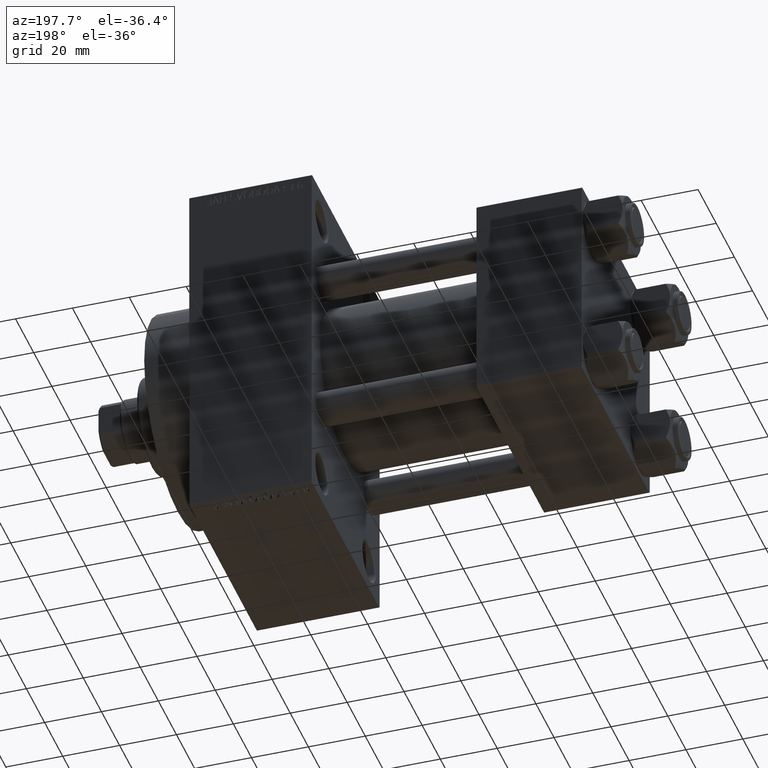
[diagram: clean part render]
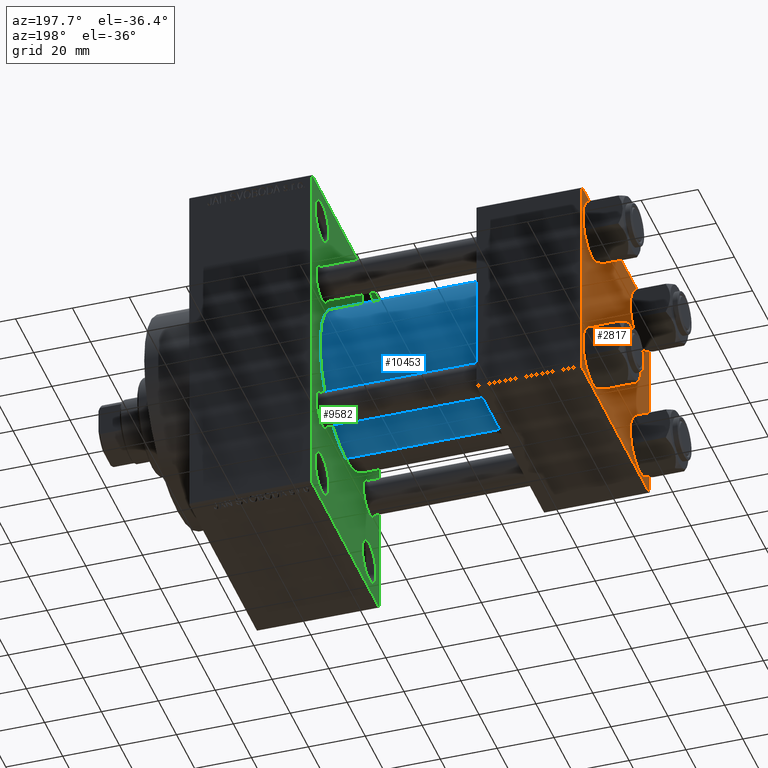
[diagram: same view with three faces highlighted in distinct colors, each labeled with its STEP entity id]
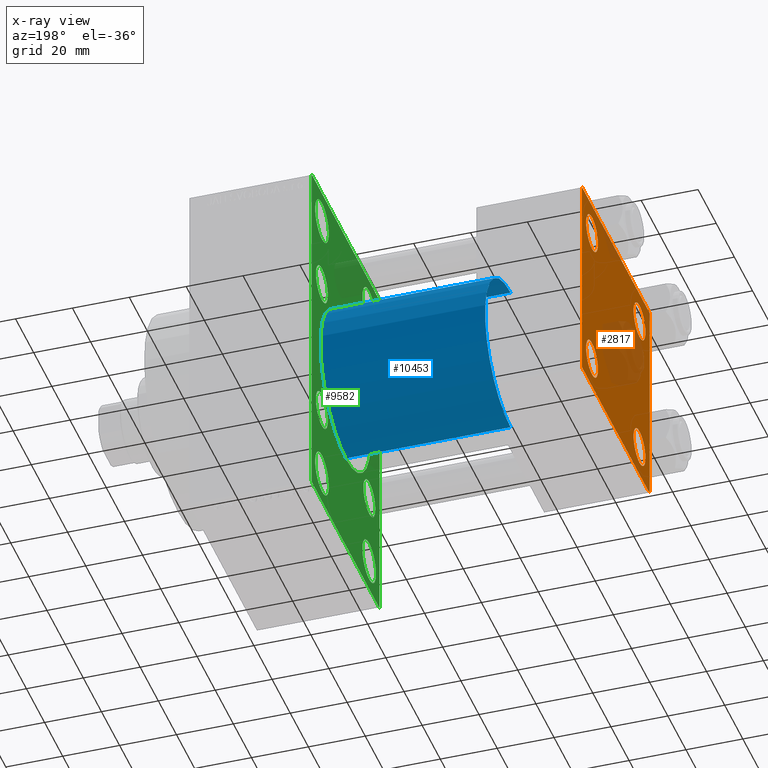
[diagram: x-ray of the same camera — body ghosted, the three highlighted faces saturated]
A machine part, auxiliary view with three faces highlighted in distinct colors.
The next image is the same camera in x-ray (body ghosted, the three faces saturated) — at least one of them is partly hidden behind the body in this view.
Their STEP definitions:

[orange] entity #2817 — the highlighted planar face has unit normal (-1, 0, 0).
#329 = CIRCLE ( 'NONE', #26999, 6.500000000000015987 ) ;
#1247 = CIRCLE ( 'NONE', #40102, 6.500000000000015987 ) ;
#1277 = CARTESIAN_POINT ( 'NONE',  ( 0.000000000000000000, 26.14999999999999858, -19.64999999999998792 ) ) ;
#1685 = LINE ( 'NONE', #34384, #24298 ) ;
#1725 = FACE_BOUND ( 'NONE', #18396, .T. ) ;
#2069 = DIRECTION ( 'NONE',  ( 0.000000000000000000, 0.000000000000000000, 1.000000000000000000 ) ) ;
#2441 = EDGE_CURVE ( 'NONE', #46633, #28955, #32797, .T. ) ;
#2817 = ADVANCED_FACE ( 'NONE', ( #1725, #40891, #37997, #30380, #8184 ), #44943, .T. ) ;
#2893 = LINE ( 'NONE', #36059, #17487 ) ;
#3602 = DIRECTION ( 'NONE',  ( 0.000000000000000000, -1.000000000000000000, -9.251858538542972814E-17 ) ) ;
#3720 = EDGE_CURVE ( 'NONE', #28955, #46633, #36644, .T. ) ;
#3738 = CARTESIAN_POINT ( 'NONE',  ( 0.000000000000000000, -37.00000000000000711, 37.49999999999999289 ) ) ;
#3749 = ORIENTED_EDGE ( 'NONE', *, *, #19549, .T. ) ;
#3956 = ORIENTED_EDGE ( 'NONE', *, *, #34467, .T. ) ;
#4001 = CIRCLE ( 'NONE', #10089, 6.500000000000023093 ) ;
#4297 = EDGE_LOOP ( 'NONE', ( #21981, #3956, #24771, #4758, #33641, #13259, #40525, #37178 ) ) ;
#4334 = DIRECTION ( 'NONE',  ( 0.000000000000000000, 0.000000000000000000, 1.000000000000000000 ) ) ;
#4346 = CARTESIAN_POINT ( 'NONE',  ( 0.000000000000000000, 37.49999999999999289, 37.50000000000000000 ) ) ;
#4504 = CIRCLE ( 'NONE', #47197, 6.500000000000023093 ) ;
#4606 = DIRECTION ( 'NONE',  ( -1.000000000000000000, 0.000000000000000000, -0.000000000000000000 ) ) ;
#4637 = AXIS2_PLACEMENT_3D ( 'NONE', #43961, #32966, #10536 ) ;
#4758 = ORIENTED_EDGE ( 'NONE', *, *, #32325, .T. ) ;
#4762 = ORIENTED_EDGE ( 'NONE', *, *, #35554, .T. ) ;
#4926 = DIRECTION ( 'NONE',  ( 0.000000000000000000, 9.251858538542971581E-17, -1.000000000000000000 ) ) ;
#5622 = VERTEX_POINT ( 'NONE', #3738 ) ;
#5866 = CARTESIAN_POINT ( 'NONE',  ( 0.000000000000000000, 37.24999999999998579, -37.24999999999998579 ) ) ;
#6122 = CARTESIAN_POINT ( 'NONE',  ( 0.000000000000000000, 36.99999999999997868, -37.50000000000000000 ) ) ;
#6212 = AXIS2_PLACEMENT_3D ( 'NONE', #26008, #17904, #29352 ) ;
#6341 = DIRECTION ( 'NONE',  ( 0.000000000000000000, -0.7071067811865524577, 0.7071067811865426878 ) ) ;
#6354 = EDGE_CURVE ( 'NONE', #18154, #39703, #26810, .T. ) ;
#6433 = VECTOR ( 'NONE', #6341, 1000.000000000000000 ) ;
#6642 = DIRECTION ( 'NONE',  ( -0.000000000000000000, 0.7071067811865474617, 0.7071067811865474617 ) ) ;
#7274 = DIRECTION ( 'NONE',  ( 0.000000000000000000, 0.000000000000000000, 1.000000000000000000 ) ) ;
#8184 = FACE_OUTER_BOUND ( 'NONE', #4297, .T. ) ;
#8237 = CARTESIAN_POINT ( 'NONE',  ( 0.000000000000000000, 26.14999999999999858, 19.64999999999998437 ) ) ;
#8916 = VERTEX_POINT ( 'NONE', #15827 ) ;
#9683 = VERTEX_POINT ( 'NONE', #23099 ) ;
#10089 = AXIS2_PLACEMENT_3D ( 'NONE', #15324, #37263, #4334 ) ;
#10266 = CARTESIAN_POINT ( 'NONE',  ( 0.000000000000000000, 37.24999999999999289, 37.24999999999999289 ) ) ;
#10536 = DIRECTION ( 'NONE',  ( 0.000000000000000000, 0.000000000000000000, 1.000000000000000000 ) ) ;
#10631 = DIRECTION ( 'NONE',  ( 1.000000000000000000, -0.000000000000000000, 0.000000000000000000 ) ) ;
#11086 = CIRCLE ( 'NONE', #37760, 6.500000000000015987 ) ;
#11831 = EDGE_CURVE ( 'NONE', #13285, #9683, #4001, .T. ) ;
#11984 = EDGE_LOOP ( 'NONE', ( #3749, #33592 ) ) ;
#13259 = ORIENTED_EDGE ( 'NONE', *, *, #36316, .T. ) ;
#13285 = VERTEX_POINT ( 'NONE', #41605 ) ;
#13745 = AXIS2_PLACEMENT_3D ( 'NONE', #29016, #10631, #7274 ) ;
#14259 = ORIENTED_EDGE ( 'NONE', *, *, #2441, .T. ) ;
#15324 = CARTESIAN_POINT ( 'NONE',  ( 0.000000000000000000, -26.14999999999999147, 26.15000000000000924 ) ) ;
#15827 = CARTESIAN_POINT ( 'NONE',  ( 0.000000000000000000, -26.14999999999999147, -19.64999999999999503 ) ) ;
#16093 = DIRECTION ( 'NONE',  ( 0.000000000000000000, 0.000000000000000000, 1.000000000000000000 ) ) ;
#16157 = LINE ( 'NONE', #27356, #17135 ) ;
#16250 = ORIENTED_EDGE ( 'NONE', *, *, #6354, .T. ) ;
#16776 = CARTESIAN_POINT ( 'NONE',  ( 0.000000000000000000, 26.14999999999999858, 32.65000000000002700 ) ) ;
#17135 = VECTOR ( 'NONE', #4926, 1000.000000000000000 ) ;
#17214 = EDGE_CURVE ( 'NONE', #44502, #25409, #16157, .T. ) ;
#17487 = VECTOR ( 'NONE', #3602, 1000.000000000000000 ) ;
#17687 = CARTESIAN_POINT ( 'NONE',  ( 0.000000000000000000, -37.50000000000000711, 36.99999999999999289 ) ) ;
#17904 = DIRECTION ( 'NONE',  ( 1.000000000000000000, -0.000000000000000000, 0.000000000000000000 ) ) ;
#18080 = VERTEX_POINT ( 'NONE', #6122 ) ;
#18143 = DIRECTION ( 'NONE',  ( 0.000000000000000000, 0.7071067811865474617, -0.7071067811865474617 ) ) ;
#18154 = VERTEX_POINT ( 'NONE', #1277 ) ;
#18396 = EDGE_LOOP ( 'NONE', ( #18813, #35962 ) ) ;
#18813 = ORIENTED_EDGE ( 'NONE', *, *, #11831, .T. ) ;
#19178 = DIRECTION ( 'NONE',  ( -0.000000000000000000, 0.000000000000000000, 1.000000000000000000 ) ) ;
#19424 = DIRECTION ( 'NONE',  ( 1.000000000000000000, -0.000000000000000000, 0.000000000000000000 ) ) ;
#19549 = EDGE_CURVE ( 'NONE', #8916, #31726, #11086, .T. ) ;
#20069 = CARTESIAN_POINT ( 'NONE',  ( 0.000000000000000000, 36.99999999999999289, 37.50000000000000000 ) ) ;
#20222 = CARTESIAN_POINT ( 'NONE',  ( 0.000000000000000000, -26.14999999999999147, 26.15000000000000924 ) ) ;
#21981 = ORIENTED_EDGE ( 'NONE', *, *, #26167, .T. ) ;
#22600 = CARTESIAN_POINT ( 'NONE',  ( 0.000000000000000000, 37.49999999999999289, -36.99999999999998579 ) ) ;
#23099 = CARTESIAN_POINT ( 'NONE',  ( 0.000000000000000000, -26.14999999999999147, 19.64999999999999147 ) ) ;
#23235 = CARTESIAN_POINT ( 'NONE',  ( 0.000000000000000000, -37.00000000000002132, -37.50000000000000711 ) ) ;
#23236 = EDGE_CURVE ( 'NONE', #30301, #25422, #24594, .T. ) ;
#23477 = CARTESIAN_POINT ( 'NONE',  ( 0.000000000000000000, -26.14999999999999147, -26.15000000000000924 ) ) ;
#24019 = DIRECTION ( 'NONE',  ( -0.000000000000000000, -0.7071067811865474617, -0.7071067811865474617 ) ) ;
#24075 = CARTESIAN_POINT ( 'NONE',  ( 0.000000000000000000, 26.14999999999999858, -32.65000000000001990 ) ) ;
#24179 = DIRECTION ( 'NONE',  ( 1.000000000000000000, -0.000000000000000000, 0.000000000000000000 ) ) ;
#24298 = VECTOR ( 'NONE', #38668, 1000.000000000000000 ) ;
#24594 = LINE ( 'NONE', #10266, #46189 ) ;
#24771 = ORIENTED_EDGE ( 'NONE', *, *, #47071, .T. ) ;
#24786 = LINE ( 'NONE', #31947, #26384 ) ;
#24841 = CARTESIAN_POINT ( 'NONE',  ( 0.000000000000000000, -37.50000000000000000, -37.00000000000003553 ) ) ;
#25409 = VERTEX_POINT ( 'NONE', #24841 ) ;
#25422 = VERTEX_POINT ( 'NONE', #32005 ) ;
#25903 = DIRECTION ( 'NONE',  ( 1.000000000000000000, -0.000000000000000000, 0.000000000000000000 ) ) ;
#26008 = CARTESIAN_POINT ( 'NONE',  ( 0.000000000000000000, 26.14999999999999858, -26.15000000000000213 ) ) ;
#26141 = CARTESIAN_POINT ( 'NONE',  ( 0.000000000000000000, 26.14999999999999858, -26.15000000000000213 ) ) ;
#26167 = EDGE_CURVE ( 'NONE', #25422, #42690, #40864, .T. ) ;
#26194 = VECTOR ( 'NONE', #29412, 1000.000000000000000 ) ;
#26384 = VECTOR ( 'NONE', #6642, 1000.000000000000114 ) ;
#26810 = CIRCLE ( 'NONE', #6212, 6.500000000000015987 ) ;
#26999 = AXIS2_PLACEMENT_3D ( 'NONE', #23477, #24179, #16093 ) ;
#27356 = CARTESIAN_POINT ( 'NONE',  ( 0.000000000000000000, -37.50000000000000711, 37.49999999999999289 ) ) ;
#28708 = EDGE_CURVE ( 'NONE', #31726, #8916, #329, .T. ) ;
#28930 = EDGE_LOOP ( 'NONE', ( #41498, #14259 ) ) ;
#28955 = VERTEX_POINT ( 'NONE', #16776 ) ;
#29016 = CARTESIAN_POINT ( 'NONE',  ( 0.000000000000000000, 26.14999999999999858, 26.15000000000000213 ) ) ;
#29352 = DIRECTION ( 'NONE',  ( 0.000000000000000000, 0.000000000000000000, 1.000000000000000000 ) ) ;
#29412 = DIRECTION ( 'NONE',  ( 0.000000000000000000, 0.000000000000000000, -1.000000000000000000 ) ) ;
#30301 = VERTEX_POINT ( 'NONE', #20069 ) ;
#30380 = FACE_BOUND ( 'NONE', #28930, .T. ) ;
#31407 = LINE ( 'NONE', #5866, #35459 ) ;
#31726 = VERTEX_POINT ( 'NONE', #43235 ) ;
#31883 = DIRECTION ( 'NONE',  ( 1.000000000000000000, -0.000000000000000000, 0.000000000000000000 ) ) ;
#31947 = CARTESIAN_POINT ( 'NONE',  ( -0.000000000000000000, -37.25000000000000000, 37.25000000000000000 ) ) ;
#32005 = CARTESIAN_POINT ( 'NONE',  ( 0.000000000000000000, 37.49999999999999289, 37.00000000000000000 ) ) ;
#32325 = EDGE_CURVE ( 'NONE', #37831, #25409, #32353, .T. ) ;
#32353 = LINE ( 'NONE', #43117, #6433 ) ;
#32797 = CIRCLE ( 'NONE', #13745, 6.500000000000023093 ) ;
#32966 = DIRECTION ( 'NONE',  ( 1.000000000000000000, -0.000000000000000000, 0.000000000000000000 ) ) ;
#33173 = EDGE_LOOP ( 'NONE', ( #16250, #4762 ) ) ;
#33303 = DIRECTION ( 'NONE',  ( 0.000000000000000000, 0.000000000000000000, 1.000000000000000000 ) ) ;
#33592 = ORIENTED_EDGE ( 'NONE', *, *, #28708, .T. ) ;
#33641 = ORIENTED_EDGE ( 'NONE', *, *, #17214, .F. ) ;
#34384 = CARTESIAN_POINT ( 'NONE',  ( 0.000000000000000000, 37.49999999999999289, 37.50000000000000000 ) ) ;
#34467 = EDGE_CURVE ( 'NONE', #42690, #18080, #31407, .T. ) ;
#35459 = VECTOR ( 'NONE', #24019, 1000.000000000000114 ) ;
#35554 = EDGE_CURVE ( 'NONE', #39703, #18154, #1247, .T. ) ;
#35962 = ORIENTED_EDGE ( 'NONE', *, *, #46429, .T. ) ;
#36059 = CARTESIAN_POINT ( 'NONE',  ( 0.000000000000000000, 37.49999999999999289, -37.50000000000000000 ) ) ;
#36316 = EDGE_CURVE ( 'NONE', #44502, #5622, #24786, .T. ) ;
#36644 = CIRCLE ( 'NONE', #4637, 6.500000000000023093 ) ;
#37178 = ORIENTED_EDGE ( 'NONE', *, *, #23236, .T. ) ;
#37263 = DIRECTION ( 'NONE',  ( 1.000000000000000000, -0.000000000000000000, 0.000000000000000000 ) ) ;
#37300 = CARTESIAN_POINT ( 'NONE',  ( 0.000000000000000000, 0.000000000000000000, 0.000000000000000000 ) ) ;
#37760 = AXIS2_PLACEMENT_3D ( 'NONE', #45441, #19424, #38019 ) ;
#37831 = VERTEX_POINT ( 'NONE', #23235 ) ;
#37997 = FACE_BOUND ( 'NONE', #33173, .T. ) ;
#38019 = DIRECTION ( 'NONE',  ( 0.000000000000000000, 0.000000000000000000, 1.000000000000000000 ) ) ;
#38668 = DIRECTION ( 'NONE',  ( 0.000000000000000000, -1.000000000000000000, -9.251858538542971581E-17 ) ) ;
#38910 = AXIS2_PLACEMENT_3D ( 'NONE', #37300, #4606, #19178 ) ;
#39703 = VERTEX_POINT ( 'NONE', #24075 ) ;
#40102 = AXIS2_PLACEMENT_3D ( 'NONE', #26141, #25903, #33303 ) ;
#40525 = ORIENTED_EDGE ( 'NONE', *, *, #42194, .F. ) ;
#40864 = LINE ( 'NONE', #4346, #26194 ) ;
#40891 = FACE_BOUND ( 'NONE', #11984, .T. ) ;
#41498 = ORIENTED_EDGE ( 'NONE', *, *, #3720, .T. ) ;
#41605 = CARTESIAN_POINT ( 'NONE',  ( 0.000000000000000000, -26.14999999999999147, 32.65000000000003411 ) ) ;
#42194 = EDGE_CURVE ( 'NONE', #30301, #5622, #1685, .T. ) ;
#42690 = VERTEX_POINT ( 'NONE', #22600 ) ;
#43117 = CARTESIAN_POINT ( 'NONE',  ( 0.000000000000000000, -37.24999999999975842, -37.25000000000027001 ) ) ;
#43235 = CARTESIAN_POINT ( 'NONE',  ( 0.000000000000000000, -26.14999999999999147, -32.65000000000002700 ) ) ;
#43961 = CARTESIAN_POINT ( 'NONE',  ( 0.000000000000000000, 26.14999999999999858, 26.15000000000000213 ) ) ;
#44502 = VERTEX_POINT ( 'NONE', #17687 ) ;
#44943 = PLANE ( 'NONE',  #38910 ) ;
#45441 = CARTESIAN_POINT ( 'NONE',  ( 0.000000000000000000, -26.14999999999999147, -26.15000000000000924 ) ) ;
#46189 = VECTOR ( 'NONE', #18143, 1000.000000000000114 ) ;
#46429 = EDGE_CURVE ( 'NONE', #9683, #13285, #4504, .T. ) ;
#46633 = VERTEX_POINT ( 'NONE', #8237 ) ;
#47071 = EDGE_CURVE ( 'NONE', #18080, #37831, #2893, .T. ) ;
#47197 = AXIS2_PLACEMENT_3D ( 'NONE', #20222, #31883, #2069 ) ;

[blue] entity #10453 — the highlighted cylindrical surface (partial cylindrical patch) has radius 28 mm, axis along (-1, -0, -0).
#468 = VECTOR ( 'NONE', #1026, 1000.000000000000000 ) ;
#540 = CARTESIAN_POINT ( 'NONE',  ( 37.00000000000000000, -2.602085213965210642E-15, 0.000000000000000000 ) ) ;
#1026 = DIRECTION ( 'NONE',  ( -1.000000000000000000, -0.000000000000000000, -0.000000000000000000 ) ) ;
#1312 = CIRCLE ( 'NONE', #18065, 28.00000000000000000 ) ;
#1333 = DIRECTION ( 'NONE',  ( -1.000000000000000000, -0.000000000000000000, -0.000000000000000000 ) ) ;
#1606 = FACE_OUTER_BOUND ( 'NONE', #35569, .T. ) ;
#2108 = ORIENTED_EDGE ( 'NONE', *, *, #11327, .T. ) ;
#6268 = VECTOR ( 'NONE', #1333, 1000.000000000000000 ) ;
#6950 = DIRECTION ( 'NONE',  ( 0.000000000000000000, 0.000000000000000000, 1.000000000000000000 ) ) ;
#8059 = DIRECTION ( 'NONE',  ( -1.000000000000000000, -0.000000000000000000, -0.000000000000000000 ) ) ;
#8990 = CIRCLE ( 'NONE', #18133, 28.00000000000000000 ) ;
#10453 = ADVANCED_FACE ( 'NONE', ( #1606 ), #29555, .T. ) ;
#11327 = EDGE_CURVE ( 'NONE', #44877, #43049, #19470, .T. ) ;
#11405 = CARTESIAN_POINT ( 'NONE',  ( 95.00000000000000000, -2.602085213965210642E-15, 0.000000000000000000 ) ) ;
#13232 = CARTESIAN_POINT ( 'NONE',  ( 95.00000000000000000, -2.602085213965210642E-15, 28.00000000000000000 ) ) ;
#14876 = CARTESIAN_POINT ( 'NONE',  ( 95.00000000000000000, -2.602085213965210642E-15, 28.00000000000000000 ) ) ;
#15657 = ORIENTED_EDGE ( 'NONE', *, *, #35778, .F. ) ;
#17689 = CARTESIAN_POINT ( 'NONE',  ( 37.00000000000000000, 8.269258236473776482E-16, -28.00000000000000000 ) ) ;
#18065 = AXIS2_PLACEMENT_3D ( 'NONE', #540, #36072, #6950 ) ;
#18133 = AXIS2_PLACEMENT_3D ( 'NONE', #22845, #36913, #45040 ) ;
#18457 = AXIS2_PLACEMENT_3D ( 'NONE', #11405, #8059, #22637 ) ;
#19470 = LINE ( 'NONE', #34026, #6268 ) ;
#20714 = VERTEX_POINT ( 'NONE', #13232 ) ;
#22637 = DIRECTION ( 'NONE',  ( 0.000000000000000000, 0.000000000000000000, 1.000000000000000000 ) ) ;
#22845 = CARTESIAN_POINT ( 'NONE',  ( 95.00000000000000000, -2.602085213965210642E-15, 0.000000000000000000 ) ) ;
#23814 = ORIENTED_EDGE ( 'NONE', *, *, #38122, .T. ) ;
#29555 = CYLINDRICAL_SURFACE ( 'NONE', #18457, 28.00000000000000000 ) ;
#32504 = VERTEX_POINT ( 'NONE', #46347 ) ;
#33947 = LINE ( 'NONE', #14876, #468 ) ;
#34026 = CARTESIAN_POINT ( 'NONE',  ( 95.00000000000000000, 8.269258236473776482E-16, -28.00000000000000000 ) ) ;
#35569 = EDGE_LOOP ( 'NONE', ( #41183, #2108, #23814, #15657 ) ) ;
#35778 = EDGE_CURVE ( 'NONE', #20714, #32504, #33947, .T. ) ;
#36072 = DIRECTION ( 'NONE',  ( 1.000000000000000000, -0.000000000000000000, 0.000000000000000000 ) ) ;
#36913 = DIRECTION ( 'NONE',  ( 1.000000000000000000, 0.000000000000000000, 0.000000000000000000 ) ) ;
#38122 = EDGE_CURVE ( 'NONE', #43049, #32504, #1312, .T. ) ;
#39846 = EDGE_CURVE ( 'NONE', #44877, #20714, #8990, .T. ) ;
#41183 = ORIENTED_EDGE ( 'NONE', *, *, #39846, .F. ) ;
#43049 = VERTEX_POINT ( 'NONE', #17689 ) ;
#44877 = VERTEX_POINT ( 'NONE', #45285 ) ;
#45040 = DIRECTION ( 'NONE',  ( 0.000000000000000000, 0.000000000000000000, -1.000000000000000000 ) ) ;
#45285 = CARTESIAN_POINT ( 'NONE',  ( 95.00000000000000000, 8.269258236473776482E-16, -28.00000000000000000 ) ) ;
#46347 = CARTESIAN_POINT ( 'NONE',  ( 37.00000000000000000, -2.602085213965210642E-15, 28.00000000000000000 ) ) ;

[green] entity #9582 — the highlighted planar face has unit normal (-1, 0, 0).
#4 = DIRECTION ( 'NONE',  ( 1.000000000000000000, -0.000000000000000000, 0.000000000000000000 ) ) ;
#10 = VECTOR ( 'NONE', #23156, 1000.000000000000000 ) ;
#125 = CARTESIAN_POINT ( 'NONE',  ( 95.00000000000000000, -26.14999999999999147, -32.65000000000001990 ) ) ;
#332 = ORIENTED_EDGE ( 'NONE', *, *, #12573, .T. ) ;
#338 = VERTEX_POINT ( 'NONE', #39956 ) ;
#341 = DIRECTION ( 'NONE',  ( 0.000000000000000000, 0.000000000000000000, 1.000000000000000000 ) ) ;
#607 = AXIS2_PLACEMENT_3D ( 'NONE', #3570, #4, #15511 ) ;
#610 = CARTESIAN_POINT ( 'NONE',  ( 95.00000000000000000, 26.14999999999999858, 26.15000000000000213 ) ) ;
#914 = CARTESIAN_POINT ( 'NONE',  ( 95.00000000000000000, -50.49999999999970868, 50.50000000000040501 ) ) ;
#1058 = CIRCLE ( 'NONE', #10196, 6.500000000000008882 ) ;
#1196 = LINE ( 'NONE', #37464, #43942 ) ;
#1416 = AXIS2_PLACEMENT_3D ( 'NONE', #12717, #9354, #41595 ) ;
#1772 = CARTESIAN_POINT ( 'NONE',  ( 95.00000000000000000, -26.14999999999999147, 19.65000000000000213 ) ) ;
#2294 = ORIENTED_EDGE ( 'NONE', *, *, #34928, .T. ) ;
#2527 = CIRCLE ( 'NONE', #19319, 7.499999999999978684 ) ;
#2724 = AXIS2_PLACEMENT_3D ( 'NONE', #18637, #26500, #3591 ) ;
#2950 = DIRECTION ( 'NONE',  ( -0.000000000000000000, -0.7071067811865573427, -0.7071067811865378028 ) ) ;
#3368 = CARTESIAN_POINT ( 'NONE',  ( 95.00000000000000000, -26.14999999999999147, 26.15000000000000924 ) ) ;
#3570 = CARTESIAN_POINT ( 'NONE',  ( 95.00000000000000000, -25.99999999999999645, -52.49999999999999289 ) ) ;
#3591 = DIRECTION ( 'NONE',  ( 0.000000000000000000, 0.000000000000000000, 1.000000000000000000 ) ) ;
#3634 = CARTESIAN_POINT ( 'NONE',  ( 95.00000000000000000, 26.00000000000000000, 52.49999999999999289 ) ) ;
#3868 = CIRCLE ( 'NONE', #9969, 6.500000000000008882 ) ;
#4216 = CARTESIAN_POINT ( 'NONE',  ( 95.00000000000000000, 26.00000000000000000, 52.49999999999999289 ) ) ;
#4528 = CARTESIAN_POINT ( 'NONE',  ( 95.00000000000000000, 26.14999999999999858, -32.65000000000001279 ) ) ;
#5022 = CIRCLE ( 'NONE', #33196, 7.499999999999978684 ) ;
#5536 = CIRCLE ( 'NONE', #7853, 28.00000000000000000 ) ;
#5710 = VERTEX_POINT ( 'NONE', #19723 ) ;
#5799 = ORIENTED_EDGE ( 'NONE', *, *, #11131, .T. ) ;
#6045 = DIRECTION ( 'NONE',  ( 0.000000000000000000, 0.000000000000000000, 1.000000000000000000 ) ) ;
#6191 = EDGE_CURVE ( 'NONE', #45585, #17447, #9926, .T. ) ;
#6201 = VERTEX_POINT ( 'NONE', #8386 ) ;
#6767 = EDGE_CURVE ( 'NONE', #45092, #25185, #3868, .T. ) ;
#7248 = CIRCLE ( 'NONE', #42383, 7.499999999999978684 ) ;
#7249 = CIRCLE ( 'NONE', #22549, 7.499999999999978684 ) ;
#7498 = DIRECTION ( 'NONE',  ( 1.000000000000000000, -0.000000000000000000, 0.000000000000000000 ) ) ;
#7804 = DIRECTION ( 'NONE',  ( 1.000000000000000000, -0.000000000000000000, 0.000000000000000000 ) ) ;
#7827 = FACE_BOUND ( 'NONE', #39693, .T. ) ;
#7853 = AXIS2_PLACEMENT_3D ( 'NONE', #20936, #21174, #42446 ) ;
#8198 = DIRECTION ( 'NONE',  ( 1.000000000000000000, -0.000000000000000000, 0.000000000000000000 ) ) ;
#8386 = CARTESIAN_POINT ( 'NONE',  ( 95.00000000000000000, 36.99999999999997158, 63.99999999999998579 ) ) ;
#8990 = CIRCLE ( 'NONE', #18133, 28.00000000000000000 ) ;
#9210 = ORIENTED_EDGE ( 'NONE', *, *, #39449, .T. ) ;
#9354 = DIRECTION ( 'NONE',  ( 1.000000000000000000, -0.000000000000000000, 0.000000000000000000 ) ) ;
#9475 = DIRECTION ( 'NONE',  ( 0.000000000000000000, 0.000000000000000000, 1.000000000000000000 ) ) ;
#9582 = ADVANCED_FACE ( 'NONE', ( #40533, #15243, #11176, #18107, #47231, #17868, #7827, #32651, #14526, #46995 ), #29085, .T. ) ;
#9926 = CIRCLE ( 'NONE', #36611, 6.500000000000008882 ) ;
#9946 = DIRECTION ( 'NONE',  ( 1.000000000000000000, -0.000000000000000000, 0.000000000000000000 ) ) ;
#9969 = AXIS2_PLACEMENT_3D ( 'NONE', #610, #7498, #26366 ) ;
#10098 = ORIENTED_EDGE ( 'NONE', *, *, #6191, .T. ) ;
#10107 = CARTESIAN_POINT ( 'NONE',  ( 95.00000000000000000, 26.00000000000000000, 45.00000000000001421 ) ) ;
#10196 = AXIS2_PLACEMENT_3D ( 'NONE', #3368, #17948, #14362 ) ;
#10658 = CARTESIAN_POINT ( 'NONE',  ( 95.00000000000000000, 26.00000000000000000, -52.49999999999999289 ) ) ;
#10662 = CARTESIAN_POINT ( 'NONE',  ( 95.00000000000000000, 37.49999999999999289, -63.50000000000001421 ) ) ;
#10756 = LINE ( 'NONE', #27964, #12666 ) ;
#11131 = EDGE_CURVE ( 'NONE', #12447, #18562, #38282, .T. ) ;
#11176 = FACE_BOUND ( 'NONE', #34843, .T. ) ;
#11373 = VERTEX_POINT ( 'NONE', #31379 ) ;
#11525 = EDGE_CURVE ( 'NONE', #30711, #41809, #43532, .T. ) ;
#11589 = VERTEX_POINT ( 'NONE', #42832 ) ;
#11860 = DIRECTION ( 'NONE',  ( 1.000000000000000000, -0.000000000000000000, 0.000000000000000000 ) ) ;
#11941 = DIRECTION ( 'NONE',  ( 0.000000000000000000, -1.000000000000000000, -1.850371707708594563E-16 ) ) ;
#12025 = EDGE_LOOP ( 'NONE', ( #15217, #332, #29899, #32858, #22088, #21369, #45489, #35689 ) ) ;
#12055 = ORIENTED_EDGE ( 'NONE', *, *, #32119, .T. ) ;
#12121 = DIRECTION ( 'NONE',  ( 1.000000000000000000, -0.000000000000000000, 0.000000000000000000 ) ) ;
#12387 = EDGE_CURVE ( 'NONE', #20714, #44877, #5536, .T. ) ;
#12446 = DIRECTION ( 'NONE',  ( 0.000000000000000000, 0.000000000000000000, 1.000000000000000000 ) ) ;
#12447 = VERTEX_POINT ( 'NONE', #1772 ) ;
#12573 = EDGE_CURVE ( 'NONE', #18467, #338, #38183, .T. ) ;
#12599 = VECTOR ( 'NONE', #39648, 1000.000000000000000 ) ;
#12666 = VECTOR ( 'NONE', #43236, 1000.000000000000000 ) ;
#12717 = CARTESIAN_POINT ( 'NONE',  ( 95.00000000000000000, 26.14999999999999858, 26.15000000000000213 ) ) ;
#13232 = CARTESIAN_POINT ( 'NONE',  ( 95.00000000000000000, -2.602085213965210642E-15, 28.00000000000000000 ) ) ;
#13473 = ORIENTED_EDGE ( 'NONE', *, *, #35585, .T. ) ;
#13940 = EDGE_CURVE ( 'NONE', #38358, #19647, #2527, .T. ) ;
#14094 = ORIENTED_EDGE ( 'NONE', *, *, #30799, .T. ) ;
#14119 = AXIS2_PLACEMENT_3D ( 'NONE', #16904, #35260, #32145 ) ;
#14149 = EDGE_CURVE ( 'NONE', #18562, #12447, #1058, .T. ) ;
#14362 = DIRECTION ( 'NONE',  ( 0.000000000000000000, 0.000000000000000000, 1.000000000000000000 ) ) ;
#14495 = CARTESIAN_POINT ( 'NONE',  ( 95.00000000000000000, -37.49999999999999289, 63.49999999999994316 ) ) ;
#14526 = FACE_BOUND ( 'NONE', #42316, .T. ) ;
#14546 = CARTESIAN_POINT ( 'NONE',  ( 95.00000000000000000, -25.99999999999999645, -45.00000000000001421 ) ) ;
#15047 = AXIS2_PLACEMENT_3D ( 'NONE', #21713, #40566, #18136 ) ;
#15088 = CIRCLE ( 'NONE', #15047, 7.499999999999978684 ) ;
#15201 = DIRECTION ( 'NONE',  ( 1.000000000000000000, -0.000000000000000000, 0.000000000000000000 ) ) ;
#15217 = ORIENTED_EDGE ( 'NONE', *, *, #45552, .T. ) ;
#15243 = FACE_BOUND ( 'NONE', #18949, .T. ) ;
#15511 = DIRECTION ( 'NONE',  ( 0.000000000000000000, 0.000000000000000000, 1.000000000000000000 ) ) ;
#16361 = ORIENTED_EDGE ( 'NONE', *, *, #6767, .T. ) ;
#16432 = CARTESIAN_POINT ( 'NONE',  ( 95.00000000000000000, 26.00000000000000000, 59.99999999999997158 ) ) ;
#16904 = CARTESIAN_POINT ( 'NONE',  ( 95.00000000000000000, 26.00000000000000000, -52.49999999999999289 ) ) ;
#16976 = EDGE_LOOP ( 'NONE', ( #24007, #5799 ) ) ;
#17149 = VERTEX_POINT ( 'NONE', #14495 ) ;
#17447 = VERTEX_POINT ( 'NONE', #125 ) ;
#17868 = FACE_BOUND ( 'NONE', #43223, .T. ) ;
#17948 = DIRECTION ( 'NONE',  ( 1.000000000000000000, -0.000000000000000000, 0.000000000000000000 ) ) ;
#17999 = CIRCLE ( 'NONE', #30207, 6.500000000000008882 ) ;
#18107 = FACE_BOUND ( 'NONE', #37509, .T. ) ;
#18133 = AXIS2_PLACEMENT_3D ( 'NONE', #22845, #36913, #45040 ) ;
#18136 = DIRECTION ( 'NONE',  ( 0.000000000000000000, 0.000000000000000000, 1.000000000000000000 ) ) ;
#18314 = EDGE_CURVE ( 'NONE', #11589, #30711, #28915, .T. ) ;
#18451 = ORIENTED_EDGE ( 'NONE', *, *, #22364, .T. ) ;
#18467 = VERTEX_POINT ( 'NONE', #44193 ) ;
#18562 = VERTEX_POINT ( 'NONE', #20533 ) ;
#18637 = CARTESIAN_POINT ( 'NONE',  ( 95.00000000000000000, -25.99999999999999645, -52.49999999999999289 ) ) ;
#18949 = EDGE_LOOP ( 'NONE', ( #19697, #32136 ) ) ;
#19162 = CARTESIAN_POINT ( 'NONE',  ( 95.00000000000000000, -25.99999999999999645, -59.99999999999997158 ) ) ;
#19256 = AXIS2_PLACEMENT_3D ( 'NONE', #46240, #9946, #9475 ) ;
#19319 = AXIS2_PLACEMENT_3D ( 'NONE', #23002, #8198, #341 ) ;
#19607 = VERTEX_POINT ( 'NONE', #14546 ) ;
#19647 = VERTEX_POINT ( 'NONE', #25513 ) ;
#19697 = ORIENTED_EDGE ( 'NONE', *, *, #36079, .T. ) ;
#19723 = CARTESIAN_POINT ( 'NONE',  ( 95.00000000000000000, 26.00000000000000000, -45.00000000000001421 ) ) ;
#20016 = CARTESIAN_POINT ( 'NONE',  ( 95.00000000000000000, -36.99999999999995737, 63.99999999999997158 ) ) ;
#20533 = CARTESIAN_POINT ( 'NONE',  ( 95.00000000000000000, -26.14999999999999147, 32.65000000000001990 ) ) ;
#20714 = VERTEX_POINT ( 'NONE', #13232 ) ;
#20936 = CARTESIAN_POINT ( 'NONE',  ( 95.00000000000000000, -2.602085213965210642E-15, 0.000000000000000000 ) ) ;
#21174 = DIRECTION ( 'NONE',  ( 1.000000000000000000, 0.000000000000000000, 0.000000000000000000 ) ) ;
#21297 = ORIENTED_EDGE ( 'NONE', *, *, #39846, .T. ) ;
#21369 = ORIENTED_EDGE ( 'NONE', *, *, #22340, .T. ) ;
#21713 = CARTESIAN_POINT ( 'NONE',  ( 95.00000000000000000, -25.99999999999999645, 52.50000000000000000 ) ) ;
#22008 = VERTEX_POINT ( 'NONE', #22240 ) ;
#22088 = ORIENTED_EDGE ( 'NONE', *, *, #24242, .F. ) ;
#22240 = CARTESIAN_POINT ( 'NONE',  ( 95.00000000000000000, 26.00000000000000000, -59.99999999999997158 ) ) ;
#22340 = EDGE_CURVE ( 'NONE', #6201, #11589, #27876, .T. ) ;
#22364 = EDGE_CURVE ( 'NONE', #5710, #22008, #25569, .T. ) ;
#22399 = CARTESIAN_POINT ( 'NONE',  ( 95.00000000000000000, 0.000000000000000000, 0.000000000000000000 ) ) ;
#22452 = EDGE_CURVE ( 'NONE', #22008, #5710, #7249, .T. ) ;
#22549 = AXIS2_PLACEMENT_3D ( 'NONE', #10658, #15201, #29274 ) ;
#22845 = CARTESIAN_POINT ( 'NONE',  ( 95.00000000000000000, -2.602085213965210642E-15, 0.000000000000000000 ) ) ;
#22876 = VECTOR ( 'NONE', #41463, 1000.000000000000000 ) ;
#23002 = CARTESIAN_POINT ( 'NONE',  ( 95.00000000000000000, -25.99999999999999645, 52.50000000000000000 ) ) ;
#23156 = DIRECTION ( 'NONE',  ( 0.000000000000000000, -1.000000000000000000, -1.850371707708594563E-16 ) ) ;
#23264 = CARTESIAN_POINT ( 'NONE',  ( 95.00000000000000000, -26.14999999999999147, -26.15000000000000924 ) ) ;
#23304 = VERTEX_POINT ( 'NONE', #4528 ) ;
#23318 = CIRCLE ( 'NONE', #2724, 7.499999999999978684 ) ;
#23327 = LINE ( 'NONE', #914, #22876 ) ;
#23517 = CIRCLE ( 'NONE', #1416, 6.500000000000008882 ) ;
#24007 = ORIENTED_EDGE ( 'NONE', *, *, #14149, .T. ) ;
#24242 = EDGE_CURVE ( 'NONE', #6201, #31417, #1196, .T. ) ;
#25103 = AXIS2_PLACEMENT_3D ( 'NONE', #33106, #7804, #25954 ) ;
#25185 = VERTEX_POINT ( 'NONE', #33249 ) ;
#25491 = DIRECTION ( 'NONE',  ( -1.000000000000000000, 0.000000000000000000, -0.000000000000000000 ) ) ;
#25513 = CARTESIAN_POINT ( 'NONE',  ( 95.00000000000000000, -25.99999999999999645, 59.99999999999997868 ) ) ;
#25569 = CIRCLE ( 'NONE', #14119, 7.499999999999978684 ) ;
#25621 = ORIENTED_EDGE ( 'NONE', *, *, #22452, .T. ) ;
#25731 = CARTESIAN_POINT ( 'NONE',  ( 95.00000000000000000, 26.14999999999999858, -26.15000000000000213 ) ) ;
#25954 = DIRECTION ( 'NONE',  ( 0.000000000000000000, 0.000000000000000000, 1.000000000000000000 ) ) ;
#26311 = DIRECTION ( 'NONE',  ( 0.000000000000000000, 0.000000000000000000, 1.000000000000000000 ) ) ;
#26366 = DIRECTION ( 'NONE',  ( 0.000000000000000000, 0.000000000000000000, 1.000000000000000000 ) ) ;
#26500 = DIRECTION ( 'NONE',  ( 1.000000000000000000, -0.000000000000000000, 0.000000000000000000 ) ) ;
#26970 = CARTESIAN_POINT ( 'NONE',  ( 95.00000000000000000, -26.14999999999999147, -19.65000000000000213 ) ) ;
#27317 = DIRECTION ( 'NONE',  ( 1.000000000000000000, -0.000000000000000000, 0.000000000000000000 ) ) ;
#27630 = VECTOR ( 'NONE', #2950, 1000.000000000000000 ) ;
#27876 = LINE ( 'NONE', #28336, #28643 ) ;
#27964 = CARTESIAN_POINT ( 'NONE',  ( 95.00000000000000000, -37.49999999999999289, 63.99999999999997158 ) ) ;
#28336 = CARTESIAN_POINT ( 'NONE',  ( 95.00000000000000000, 50.49999999999894840, 50.50000000000176215 ) ) ;
#28643 = VECTOR ( 'NONE', #45788, 1000.000000000000000 ) ;
#28915 = LINE ( 'NONE', #29152, #12599 ) ;
#29085 = PLANE ( 'NONE',  #31365 ) ;
#29152 = CARTESIAN_POINT ( 'NONE',  ( 95.00000000000000000, 37.50000000000000000, 63.99999999999998579 ) ) ;
#29246 = ORIENTED_EDGE ( 'NONE', *, *, #43660, .T. ) ;
#29274 = DIRECTION ( 'NONE',  ( 0.000000000000000000, 0.000000000000000000, 1.000000000000000000 ) ) ;
#29686 = VERTEX_POINT ( 'NONE', #16432 ) ;
#29899 = ORIENTED_EDGE ( 'NONE', *, *, #35968, .F. ) ;
#30025 = DIRECTION ( 'NONE',  ( 0.000000000000000000, 0.000000000000000000, 1.000000000000000000 ) ) ;
#30207 = AXIS2_PLACEMENT_3D ( 'NONE', #23264, #27317, #6045 ) ;
#30665 = ORIENTED_EDGE ( 'NONE', *, *, #41003, .T. ) ;
#30711 = VERTEX_POINT ( 'NONE', #10662 ) ;
#30799 = EDGE_CURVE ( 'NONE', #29686, #46797, #7248, .T. ) ;
#30843 = CIRCLE ( 'NONE', #39994, 6.500000000000008882 ) ;
#31365 = AXIS2_PLACEMENT_3D ( 'NONE', #22399, #25491, #36942 ) ;
#31379 = CARTESIAN_POINT ( 'NONE',  ( 95.00000000000000000, 26.14999999999999858, -19.64999999999999503 ) ) ;
#31417 = VERTEX_POINT ( 'NONE', #20016 ) ;
#31669 = CARTESIAN_POINT ( 'NONE',  ( 95.00000000000000000, 36.99999999999999289, -64.00000000000000000 ) ) ;
#31718 = DIRECTION ( 'NONE',  ( 0.000000000000000000, -0.7071067811865574537, 0.7071067811865376918 ) ) ;
#32119 = EDGE_CURVE ( 'NONE', #23304, #11373, #30843, .T. ) ;
#32136 = ORIENTED_EDGE ( 'NONE', *, *, #39468, .T. ) ;
#32145 = DIRECTION ( 'NONE',  ( 0.000000000000000000, 0.000000000000000000, 1.000000000000000000 ) ) ;
#32544 = CARTESIAN_POINT ( 'NONE',  ( 95.00000000000000000, 50.49999999999948841, -50.50000000000088107 ) ) ;
#32651 = FACE_BOUND ( 'NONE', #46638, .T. ) ;
#32858 = ORIENTED_EDGE ( 'NONE', *, *, #44874, .T. ) ;
#33106 = CARTESIAN_POINT ( 'NONE',  ( 95.00000000000000000, 26.14999999999999858, -26.15000000000000213 ) ) ;
#33196 = AXIS2_PLACEMENT_3D ( 'NONE', #3634, #43744, #26311 ) ;
#33249 = CARTESIAN_POINT ( 'NONE',  ( 95.00000000000000000, 26.14999999999999858, 32.65000000000001990 ) ) ;
#33572 = DIRECTION ( 'NONE',  ( 0.000000000000000000, 0.000000000000000000, 1.000000000000000000 ) ) ;
#34167 = CARTESIAN_POINT ( 'NONE',  ( 95.00000000000000000, -26.14999999999999147, -26.15000000000000924 ) ) ;
#34369 = CARTESIAN_POINT ( 'NONE',  ( 95.00000000000000000, 37.49999999999999289, -64.00000000000000000 ) ) ;
#34843 = EDGE_LOOP ( 'NONE', ( #18451, #25621 ) ) ;
#34928 = EDGE_CURVE ( 'NONE', #46797, #29686, #5022, .T. ) ;
#35070 = EDGE_LOOP ( 'NONE', ( #9210, #41112 ) ) ;
#35260 = DIRECTION ( 'NONE',  ( 1.000000000000000000, -0.000000000000000000, 0.000000000000000000 ) ) ;
#35294 = CARTESIAN_POINT ( 'NONE',  ( 95.00000000000000000, -50.49999999999945999, -50.50000000000086686 ) ) ;
#35585 = EDGE_CURVE ( 'NONE', #17447, #45585, #17999, .T. ) ;
#35689 = ORIENTED_EDGE ( 'NONE', *, *, #11525, .T. ) ;
#35912 = ORIENTED_EDGE ( 'NONE', *, *, #12387, .T. ) ;
#35968 = EDGE_CURVE ( 'NONE', #17149, #338, #10756, .T. ) ;
#36079 = EDGE_CURVE ( 'NONE', #19607, #43525, #23318, .T. ) ;
#36611 = AXIS2_PLACEMENT_3D ( 'NONE', #34167, #41333, #12446 ) ;
#36816 = CARTESIAN_POINT ( 'NONE',  ( 95.00000000000000000, 26.14999999999999858, 19.64999999999999147 ) ) ;
#36913 = DIRECTION ( 'NONE',  ( 1.000000000000000000, 0.000000000000000000, 0.000000000000000000 ) ) ;
#36942 = DIRECTION ( 'NONE',  ( -0.000000000000000000, 0.000000000000000000, 1.000000000000000000 ) ) ;
#37464 = CARTESIAN_POINT ( 'NONE',  ( 95.00000000000000000, 37.50000000000000000, 63.99999999999998579 ) ) ;
#37509 = EDGE_LOOP ( 'NONE', ( #14094, #2294 ) ) ;
#37961 = CIRCLE ( 'NONE', #607, 7.499999999999978684 ) ;
#38183 = LINE ( 'NONE', #35294, #42921 ) ;
#38282 = CIRCLE ( 'NONE', #19256, 6.500000000000008882 ) ;
#38358 = VERTEX_POINT ( 'NONE', #45620 ) ;
#39449 = EDGE_CURVE ( 'NONE', #19647, #38358, #15088, .T. ) ;
#39468 = EDGE_CURVE ( 'NONE', #43525, #19607, #37961, .T. ) ;
#39648 = DIRECTION ( 'NONE',  ( 0.000000000000000000, -5.421010862427522170E-17, -1.000000000000000000 ) ) ;
#39693 = EDGE_LOOP ( 'NONE', ( #29246, #12055 ) ) ;
#39846 = EDGE_CURVE ( 'NONE', #44877, #20714, #8990, .T. ) ;
#39956 = CARTESIAN_POINT ( 'NONE',  ( 95.00000000000000000, -37.49999999999999289, -63.49999999999997158 ) ) ;
#39994 = AXIS2_PLACEMENT_3D ( 'NONE', #25731, #12121, #30025 ) ;
#40533 = FACE_BOUND ( 'NONE', #35070, .T. ) ;
#40566 = DIRECTION ( 'NONE',  ( 1.000000000000000000, -0.000000000000000000, 0.000000000000000000 ) ) ;
#41003 = EDGE_CURVE ( 'NONE', #25185, #45092, #23517, .T. ) ;
#41112 = ORIENTED_EDGE ( 'NONE', *, *, #13940, .T. ) ;
#41135 = CIRCLE ( 'NONE', #25103, 6.500000000000008882 ) ;
#41333 = DIRECTION ( 'NONE',  ( 1.000000000000000000, -0.000000000000000000, 0.000000000000000000 ) ) ;
#41463 = DIRECTION ( 'NONE',  ( -0.000000000000000000, 0.7071067811865524577, 0.7071067811865426878 ) ) ;
#41595 = DIRECTION ( 'NONE',  ( 0.000000000000000000, 0.000000000000000000, 1.000000000000000000 ) ) ;
#41780 = LINE ( 'NONE', #34369, #10 ) ;
#41809 = VERTEX_POINT ( 'NONE', #31669 ) ;
#42316 = EDGE_LOOP ( 'NONE', ( #35912, #21297 ) ) ;
#42383 = AXIS2_PLACEMENT_3D ( 'NONE', #4216, #11860, #33572 ) ;
#42446 = DIRECTION ( 'NONE',  ( 0.000000000000000000, 0.000000000000000000, -1.000000000000000000 ) ) ;
#42832 = CARTESIAN_POINT ( 'NONE',  ( 95.00000000000000000, 37.50000000000000000, 63.49999999999998579 ) ) ;
#42921 = VECTOR ( 'NONE', #31718, 999.9999999999998863 ) ;
#43223 = EDGE_LOOP ( 'NONE', ( #30665, #16361 ) ) ;
#43236 = DIRECTION ( 'NONE',  ( 0.000000000000000000, 0.000000000000000000, -1.000000000000000000 ) ) ;
#43525 = VERTEX_POINT ( 'NONE', #19162 ) ;
#43532 = LINE ( 'NONE', #32544, #27630 ) ;
#43660 = EDGE_CURVE ( 'NONE', #11373, #23304, #41135, .T. ) ;
#43744 = DIRECTION ( 'NONE',  ( 1.000000000000000000, -0.000000000000000000, 0.000000000000000000 ) ) ;
#43942 = VECTOR ( 'NONE', #11941, 1000.000000000000000 ) ;
#44193 = CARTESIAN_POINT ( 'NONE',  ( 95.00000000000000000, -36.99999999999993605, -64.00000000000001421 ) ) ;
#44874 = EDGE_CURVE ( 'NONE', #17149, #31417, #23327, .T. ) ;
#44877 = VERTEX_POINT ( 'NONE', #45285 ) ;
#45040 = DIRECTION ( 'NONE',  ( 0.000000000000000000, 0.000000000000000000, -1.000000000000000000 ) ) ;
#45092 = VERTEX_POINT ( 'NONE', #36816 ) ;
#45285 = CARTESIAN_POINT ( 'NONE',  ( 95.00000000000000000, 8.269258236473776482E-16, -28.00000000000000000 ) ) ;
#45489 = ORIENTED_EDGE ( 'NONE', *, *, #18314, .T. ) ;
#45552 = EDGE_CURVE ( 'NONE', #41809, #18467, #41780, .T. ) ;
#45585 = VERTEX_POINT ( 'NONE', #26970 ) ;
#45620 = CARTESIAN_POINT ( 'NONE',  ( 95.00000000000000000, -25.99999999999999645, 45.00000000000002132 ) ) ;
#45788 = DIRECTION ( 'NONE',  ( 0.000000000000000000, 0.7071067811865672237, -0.7071067811865279218 ) ) ;
#46240 = CARTESIAN_POINT ( 'NONE',  ( 95.00000000000000000, -26.14999999999999147, 26.15000000000000924 ) ) ;
#46638 = EDGE_LOOP ( 'NONE', ( #10098, #13473 ) ) ;
#46797 = VERTEX_POINT ( 'NONE', #10107 ) ;
#46995 = FACE_OUTER_BOUND ( 'NONE', #12025, .T. ) ;
#47231 = FACE_BOUND ( 'NONE', #16976, .T. ) ;